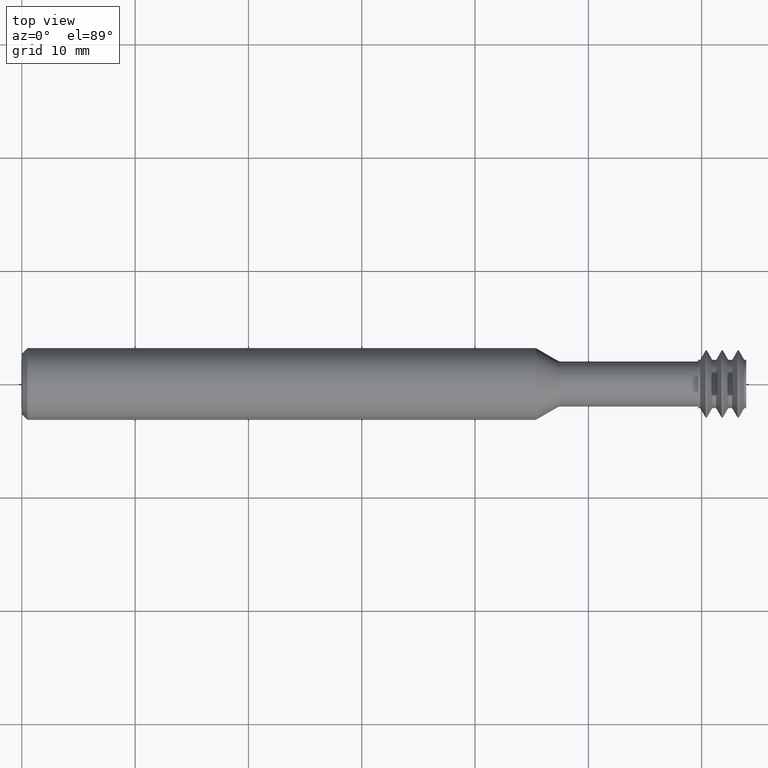
[diagram: clean part render]
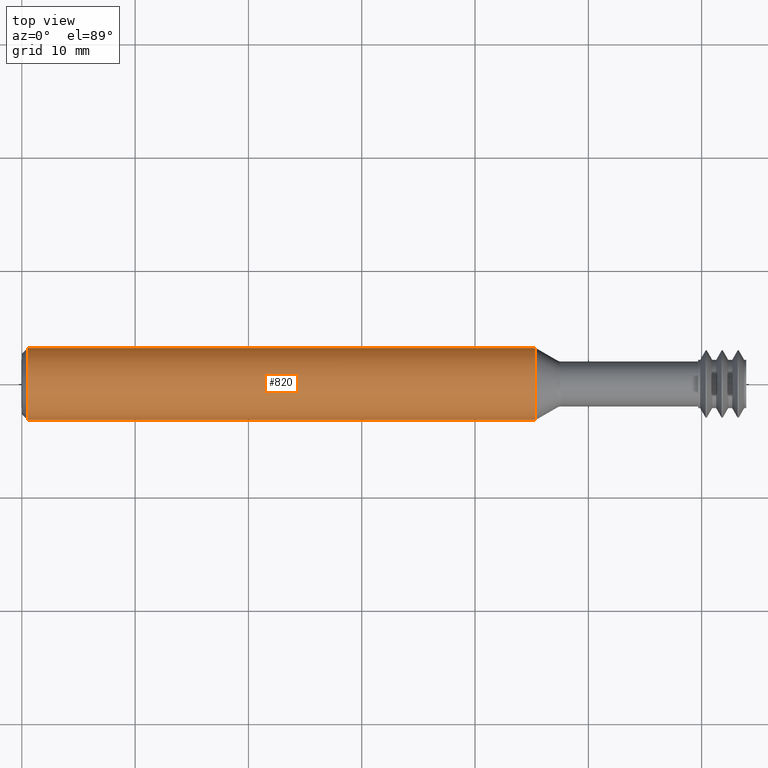
[diagram: same view with one face highlighted and labeled with its STEP entity id]
A machine part, top view. The second image highlights one B-rep face of the part: STEP entity #820.
In plain terms, the highlighted cylindrical surface (edge-blend (fillet) strip) has radius 3.1712 mm, axis along (-1, 0, -0).
Its self-contained STEP definition (entity closure, byte-faithful):
#2 = LINE ( 'NONE', #961, #390 ) ;
#8 = FACE_OUTER_BOUND ( 'NONE', #133, .T. ) ;
#35 = CARTESIAN_POINT ( 'NONE',  ( 2.350000000000000089, 0.1248500000000000026, 1.528971528735470422E-17 ) ) ;
#48 = EDGE_CURVE ( 'NONE', #352, #154, #194, .T. ) ;
#59 = LINE ( 'NONE', #35, #679 ) ;
#86 = EDGE_CURVE ( 'NONE', #268, #154, #59, .T. ) ;
#95 = CYLINDRICAL_SURFACE ( 'NONE', #1013, 0.1248500000000000026 ) ;
#130 = AXIS2_PLACEMENT_3D ( 'NONE', #379, #708, #373 ) ;
#133 = EDGE_LOOP ( 'NONE', ( #857, #890, #370, #722 ) ) ;
#152 = DIRECTION ( 'NONE',  ( -1.000000000000000000, 2.239313081137374464E-19, -0.000000000000000000 ) ) ;
#154 = VERTEX_POINT ( 'NONE', #226 ) ;
#194 = CIRCLE ( 'NONE', #130, 0.1248500000000000026 ) ;
#211 = DIRECTION ( 'NONE',  ( -1.000000000000000000, 2.239313081137374464E-19, -0.000000000000000000 ) ) ;
#226 = CARTESIAN_POINT ( 'NONE',  ( 0.02000000000000005940, 0.1248500000000000026, 0.000000000000000000 ) ) ;
#229 = CIRCLE ( 'NONE', #384, 0.1248500000000000026 ) ;
#254 = DIRECTION ( 'NONE',  ( 0.000000000000000000, -1.000000000000000000, 0.000000000000000000 ) ) ;
#268 = VERTEX_POINT ( 'NONE', #415 ) ;
#352 = VERTEX_POINT ( 'NONE', #502 ) ;
#370 = ORIENTED_EDGE ( 'NONE', *, *, #48, .F. ) ;
#373 = DIRECTION ( 'NONE',  ( 0.000000000000000000, -1.000000000000000000, 0.000000000000000000 ) ) ;
#379 = CARTESIAN_POINT ( 'NONE',  ( 0.02000000000000005940, -2.040747565273492847E-19, 0.000000000000000000 ) ) ;
#384 = AXIS2_PLACEMENT_3D ( 'NONE', #554, #700, #1045 ) ;
#390 = VECTOR ( 'NONE', #152, 39.37007874015748143 ) ;
#415 = CARTESIAN_POINT ( 'NONE',  ( 1.785853419665398789, 0.1248500000000000026, 1.528971528735470422E-17 ) ) ;
#495 = CARTESIAN_POINT ( 'NONE',  ( 1.785853419665398789, -0.1248500000000000026, 0.000000000000000000 ) ) ;
#502 = CARTESIAN_POINT ( 'NONE',  ( 0.02000000000000005940, -0.1248500000000000026, 1.528971528735470422E-17 ) ) ;
#520 = CARTESIAN_POINT ( 'NONE',  ( 2.350000000000000089, -7.258347044323575049E-19, 0.000000000000000000 ) ) ;
#554 = CARTESIAN_POINT ( 'NONE',  ( 1.785853419665398789, -5.995046227301385672E-19, 0.000000000000000000 ) ) ;
#582 = EDGE_CURVE ( 'NONE', #1058, #352, #2, .T. ) ;
#679 = VECTOR ( 'NONE', #211, 39.37007874015748143 ) ;
#691 = DIRECTION ( 'NONE',  ( -1.000000000000000000, 2.239313081137374464E-19, -0.000000000000000000 ) ) ;
#700 = DIRECTION ( 'NONE',  ( -1.000000000000000000, 2.239313081137374464E-19, -0.000000000000000000 ) ) ;
#708 = DIRECTION ( 'NONE',  ( -1.000000000000000000, 2.239313081137374464E-19, -0.000000000000000000 ) ) ;
#722 = ORIENTED_EDGE ( 'NONE', *, *, #582, .F. ) ;
#820 = ADVANCED_FACE ( 'NONE', ( #8 ), #95, .T. ) ;
#857 = ORIENTED_EDGE ( 'NONE', *, *, #885, .T. ) ;
#885 = EDGE_CURVE ( 'NONE', #1058, #268, #229, .T. ) ;
#890 = ORIENTED_EDGE ( 'NONE', *, *, #86, .T. ) ;
#961 = CARTESIAN_POINT ( 'NONE',  ( 2.350000000000000089, -0.1248500000000000026, 0.000000000000000000 ) ) ;
#1013 = AXIS2_PLACEMENT_3D ( 'NONE', #520, #691, #254 ) ;
#1045 = DIRECTION ( 'NONE',  ( 0.000000000000000000, -1.000000000000000000, 0.000000000000000000 ) ) ;
#1058 = VERTEX_POINT ( 'NONE', #495 ) ;